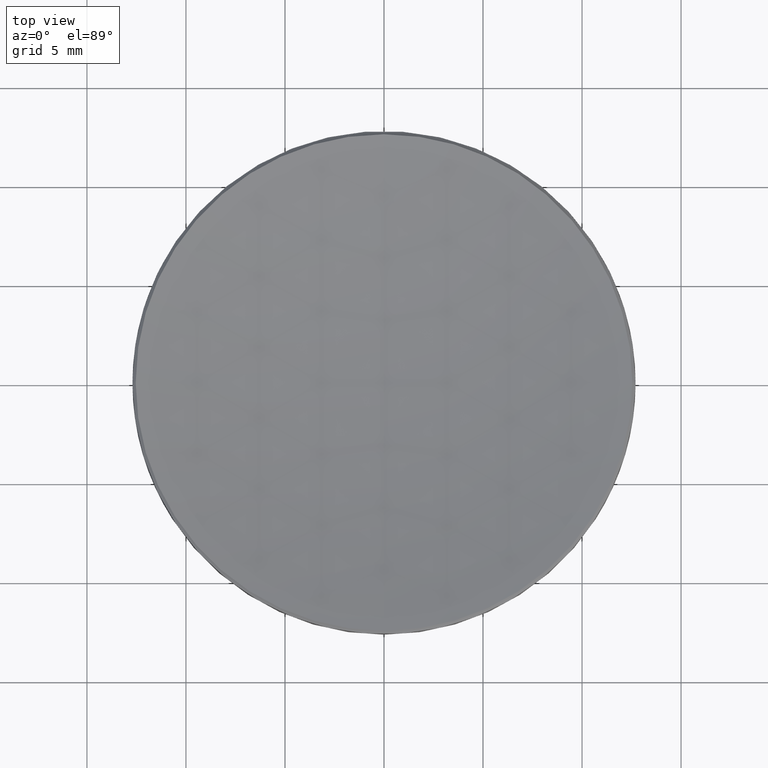
[diagram: clean part render]
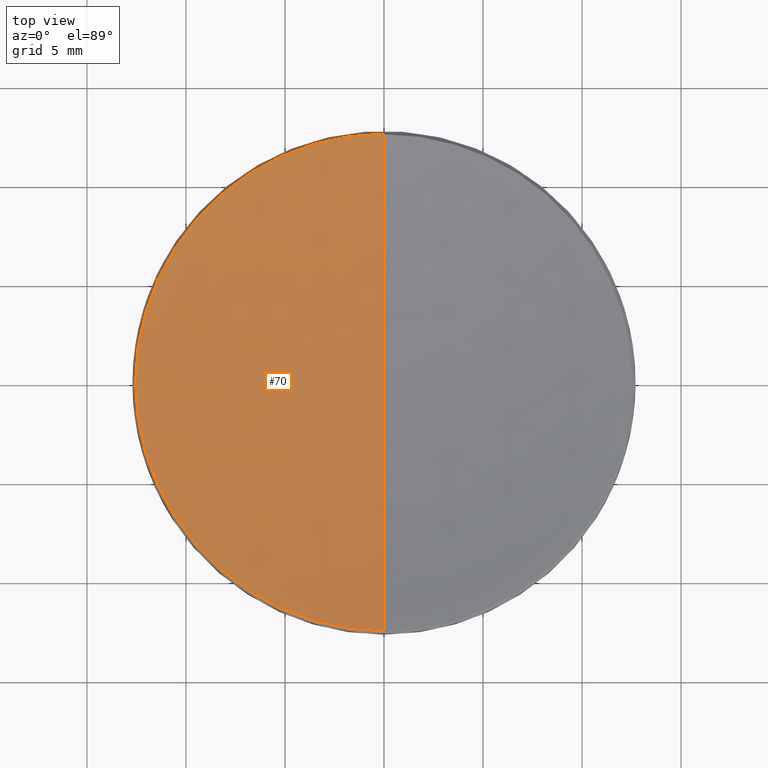
[diagram: same view with one face highlighted and labeled with its STEP entity id]
A machine part, top view. The second image highlights one B-rep face of the part: STEP entity #70.
In plain terms, the highlighted spherical surface has radius 55.2 mm.
Its self-contained STEP definition (entity closure, byte-faithful):
#10 = CARTESIAN_POINT ( 'NONE',  ( 0.000000000000000000, 0.000000000000000000, 11.96196640381658227 ) ) ;
#11 = VERTEX_POINT ( 'NONE', #165 ) ;
#14 = ORIENTED_EDGE ( 'NONE', *, *, #119, .F. ) ;
#20 = DIRECTION ( 'NONE',  ( -0.000000000000000000, -0.000000000000000000, 1.000000000000000000 ) ) ;
#24 = VERTEX_POINT ( 'NONE', #118 ) ;
#32 = FACE_OUTER_BOUND ( 'NONE', #175, .T. ) ;
#34 = DIRECTION ( 'NONE',  ( 0.000000000000000000, 1.000000000000000000, 0.000000000000000000 ) ) ;
#50 = DIRECTION ( 'NONE',  ( -1.000000000000000000, 0.000000000000000000, 0.000000000000000000 ) ) ;
#55 = EDGE_CURVE ( 'NONE', #230, #57, #231, .T. ) ;
#56 = DIRECTION ( 'NONE',  ( -0.000000000000000000, -0.000000000000000000, 1.000000000000000000 ) ) ;
#57 = VERTEX_POINT ( 'NONE', #250 ) ;
#65 = AXIS2_PLACEMENT_3D ( 'NONE', #206, #181, #183 ) ;
#68 = CIRCLE ( 'NONE', #220, 12.53803359618341418 ) ;
#70 = ADVANCED_FACE ( 'NONE', ( #32 ), #249, .F. ) ;
#89 = AXIS2_PLACEMENT_3D ( 'NONE', #132, #256, #153 ) ;
#101 = ORIENTED_EDGE ( 'NONE', *, *, #55, .T. ) ;
#102 = DIRECTION ( 'NONE',  ( 1.000000000000000000, 0.000000000000000000, 0.000000000000000000 ) ) ;
#118 = CARTESIAN_POINT ( 'NONE',  ( 0.000000000000000000, 3.380025165646693876E-15, 10.51917720888882712 ) ) ;
#119 = EDGE_CURVE ( 'NONE', #24, #11, #270, .T. ) ;
#123 = ORIENTED_EDGE ( 'NONE', *, *, #170, .T. ) ;
#132 = CARTESIAN_POINT ( 'NONE',  ( 0.000000000000000000, 0.000000000000000000, 65.71917720888880865 ) ) ;
#145 = CARTESIAN_POINT ( 'NONE',  ( 0.000000000000000000, 0.000000000000000000, 65.71917720888880865 ) ) ;
#148 = AXIS2_PLACEMENT_3D ( 'NONE', #145, #50, #34 ) ;
#153 = DIRECTION ( 'NONE',  ( 0.000000000000000000, 0.000000000000000000, -1.000000000000000000 ) ) ;
#165 = CARTESIAN_POINT ( 'NONE',  ( -1.535466271116798629E-15, -12.53803359618340529, 11.96196640381657872 ) ) ;
#170 = EDGE_CURVE ( 'NONE', #57, #11, #68, .T. ) ;
#175 = EDGE_LOOP ( 'NONE', ( #14, #251, #101, #123 ) ) ;
#181 = DIRECTION ( 'NONE',  ( -1.000000000000000000, 1.224646799147353207E-16, 0.000000000000000000 ) ) ;
#183 = DIRECTION ( 'NONE',  ( -1.224646799147353207E-16, -1.000000000000000000, 0.000000000000000000 ) ) ;
#187 = CIRCLE ( 'NONE', #89, 55.19999999999998863 ) ;
#199 = CARTESIAN_POINT ( 'NONE',  ( 0.000000000000000000, 12.53803359618340529, 11.96196640381657872 ) ) ;
#206 = CARTESIAN_POINT ( 'NONE',  ( 0.000000000000000000, 0.000000000000000000, 65.71917720888880865 ) ) ;
#208 = DIRECTION ( 'NONE',  ( 1.000000000000000000, 0.000000000000000000, 0.000000000000000000 ) ) ;
#220 = AXIS2_PLACEMENT_3D ( 'NONE', #273, #20, #102 ) ;
#230 = VERTEX_POINT ( 'NONE', #199 ) ;
#231 = CIRCLE ( 'NONE', #240, 12.53803359618341418 ) ;
#240 = AXIS2_PLACEMENT_3D ( 'NONE', #10, #56, #208 ) ;
#249 = SPHERICAL_SURFACE ( 'NONE', #148, 55.19999999999998863 ) ;
#250 = CARTESIAN_POINT ( 'NONE',  ( -12.53803359618341418, 0.000000000000000000, 11.96196640381658227 ) ) ;
#251 = ORIENTED_EDGE ( 'NONE', *, *, #262, .T. ) ;
#256 = DIRECTION ( 'NONE',  ( 1.000000000000000000, 0.000000000000000000, 0.000000000000000000 ) ) ;
#262 = EDGE_CURVE ( 'NONE', #24, #230, #187, .T. ) ;
#270 = CIRCLE ( 'NONE', #65, 55.19999999999998863 ) ;
#273 = CARTESIAN_POINT ( 'NONE',  ( 0.000000000000000000, 0.000000000000000000, 11.96196640381658227 ) ) ;